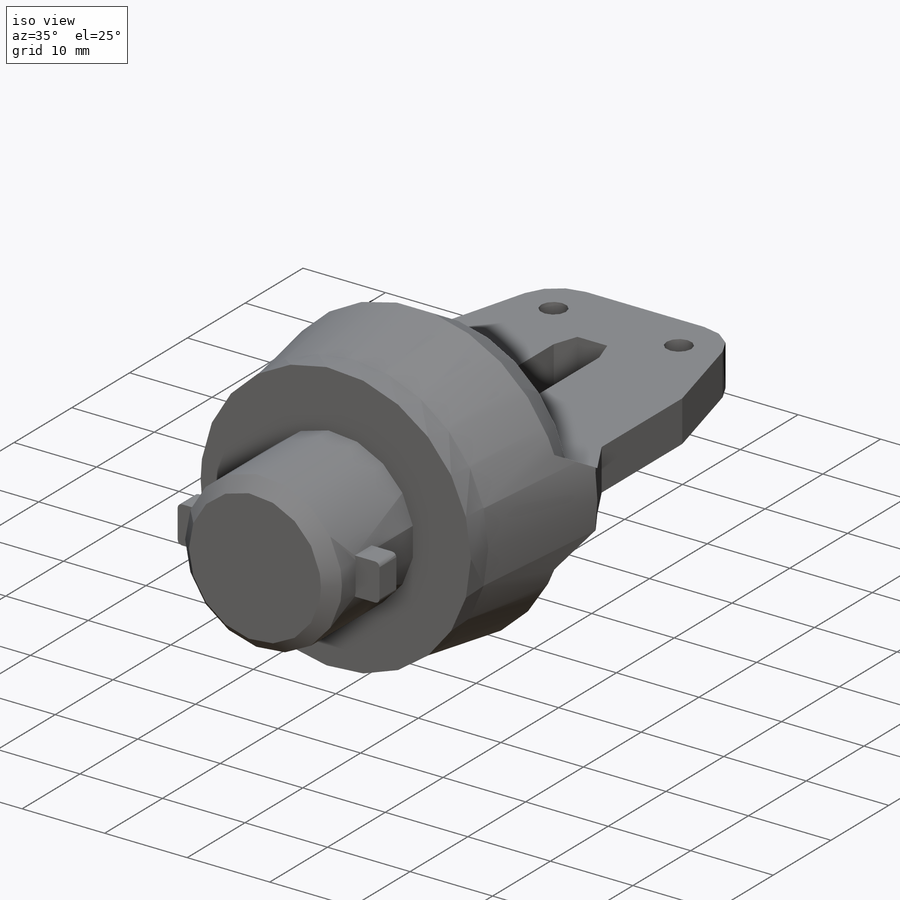
[diagram: iso view]
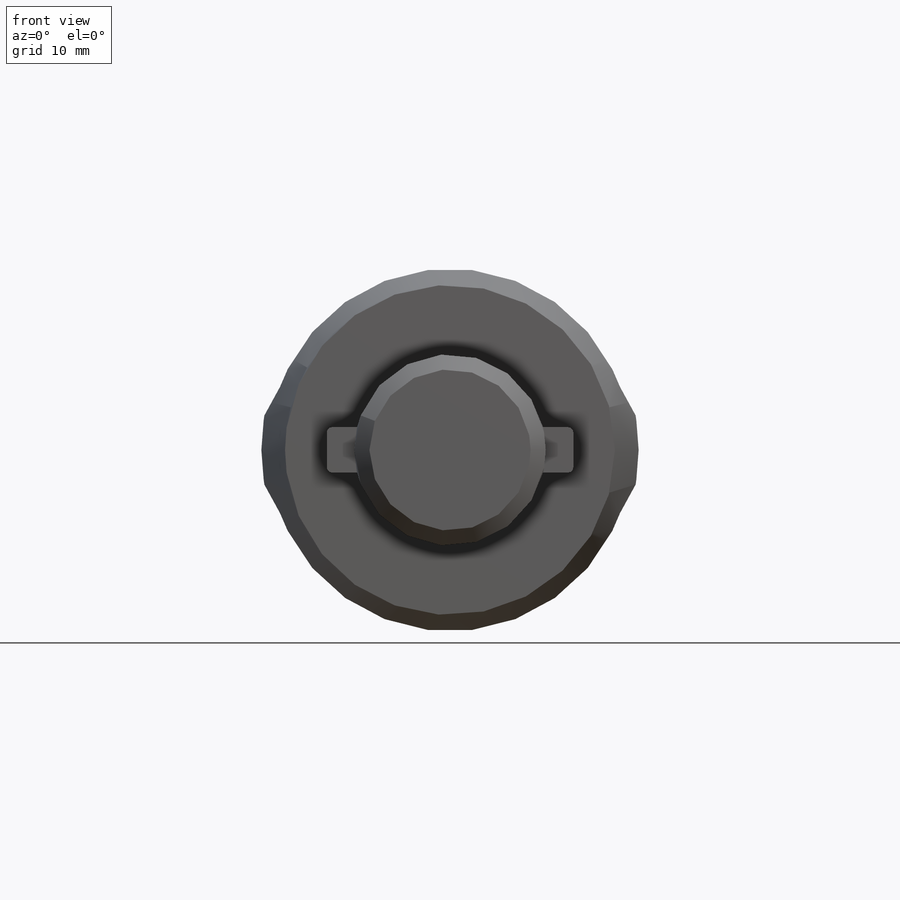
[diagram: front view]
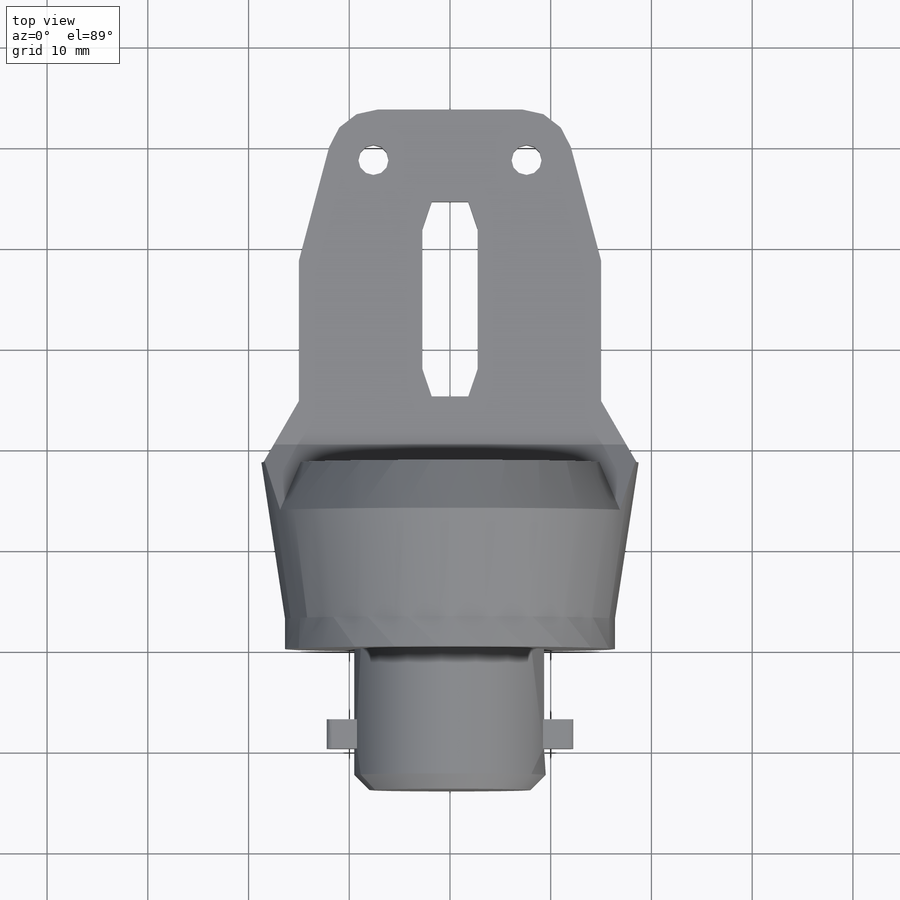
[diagram: top view]
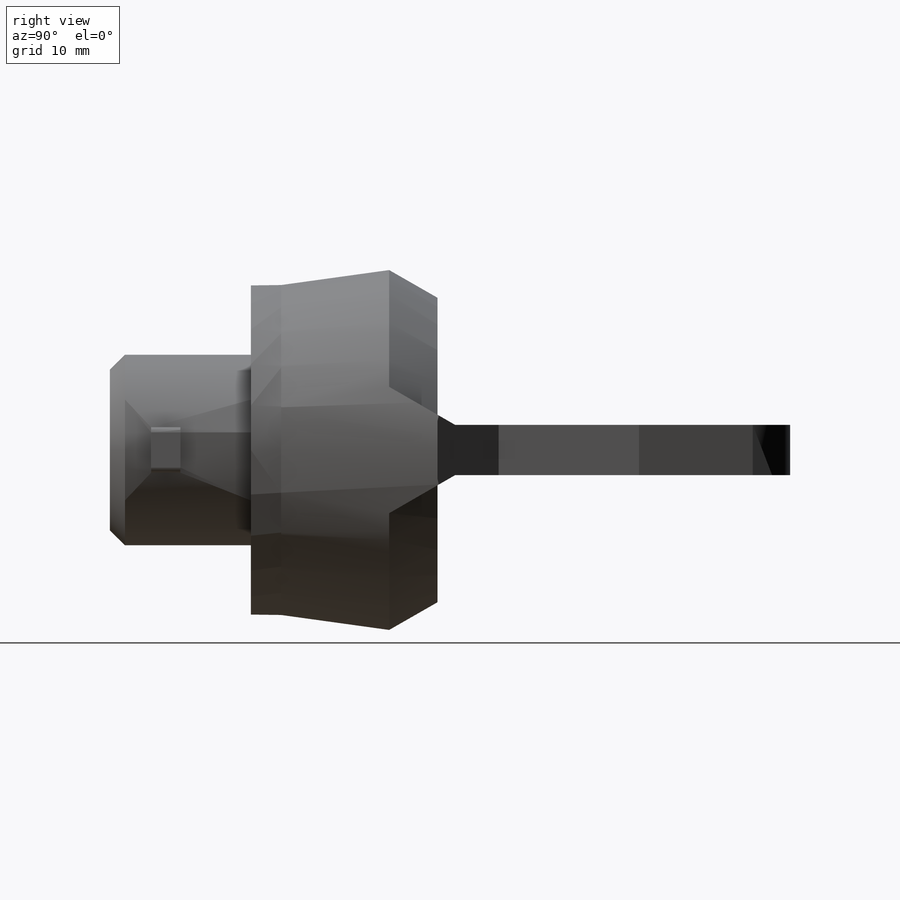
[diagram: right view]
SOLIDWORKS PART (.sldprt)
format: sldprt  version: not decoded by parser v0  size: 381,952 bytes
history: native  units: mm
features: sketch x11, chamfer x9, plane x5, extrude x5, cut_extrude x5, material x1, mirror x1, revolve x1, fillet x1 + 1 further entry (+9 scaffold rows collapsed)
feature tree (49):
  scaffold x9  (default folders/planes/origin — collapsed)
  material  "Material <not specified>"
  plane  "Przednia"
  plane  "Górna"
  plane  "Prawa"
  "Początek ukł. współrzędnych"
  sketch  "Szkic1"  dims[D1=19.0mm]
  extrude  "Dodanie-wyciągnięcie1"  Depth=14mm
  chamfer  "Sfazowanie1"  Distance=1.5mm Angle=45deg
  plane  "Płaszczyzna1"  Offset=7mm
  sketch  "Szkic2"  dims[D3=0.5mm D1=4.5mm D2=3.0mm]
  extrude  "Dodanie-wyciągnięcie2"  Depth=2.9mm
  mirror  "Lustro1"
  sketch  "Szkic3"  dims[D1=32.75mm]
  extrude  "Dodanie-wyciągnięcie3"  Depth=3mm
  sketch  "Szkic4"  dims[D1=3.0mm]
  revolve  "Obrót1"  Angle=360deg
  sketch  "Szkic5"  dims[D1=30.0mm D2=35.0mm]
  extrude  "Dodanie-wyciągnięcie4"  Depth=5mm
  sketch  "Szkic7"  dims[D1=3.0mm D2=15.2mm D3=30.0mm]
  cut_extrude  "Wytnij-wyciągnięcie1"  Depth=10mm
  chamfer  "Sfazowanie2"  Distance=4mm
  chamfer  "Sfazowanie3"  Distance=15mm
  fillet  "Zaokrąglenie2"  Radius=5mm
  sketch  "Szkic8"
  cut_extrude  "Wytnij-wyciągnięcie2"  [1 undecoded]
  plane  "Płaszczyzna2"
  chamfer  "Sfazowanie9"  Distance=3.5mm Angle=60deg
  chamfer  "Sfazowanie10"  Distance=1mm Angle=60deg
  chamfer  "Sfazowanie11"  Distance=3.5mm Angle=60deg
  sketch  "Szkic9"
  cut_extrude  "Wytnij-wyciągnięcie3"  [1 undecoded]
  sketch  "Szkic10"  dims[D1=8.1mm]
  cut_extrude  "Wytnij-wyciągnięcie4"  Depth=10mm
  chamfer  "Sfazowanie4"  Distance=1.5mm Angle=45deg
  sketch  "Szkic11"  dims[D1=8.0mm]
  extrude  "Dodanie-wyciągnięcie5"  Depth=8mm
  sketch  "Szkic12"  dims[D1=0.5mm]
  cut_extrude  "Wytnij-wyciągnięcie5"  Depth=4mm
  chamfer  "Sfazowanie5"  Distance=1mm Angle=30deg
  chamfer  "Sfazowanie6"  Distance=1mm Angle=45deg
decode coverage: 28 of 33 modeling features carry decoded parameters; 1 rows unclassified (native names shown)
note: 2 parameter values undecoded
note: suppression state not decoded; provenance and decode notes live in map.json
